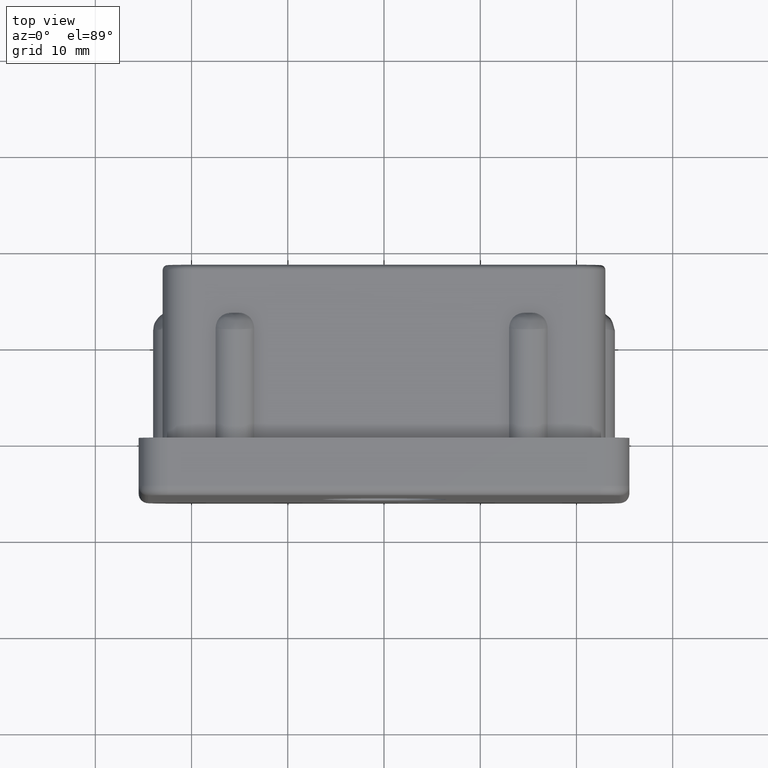
[diagram: clean part render]
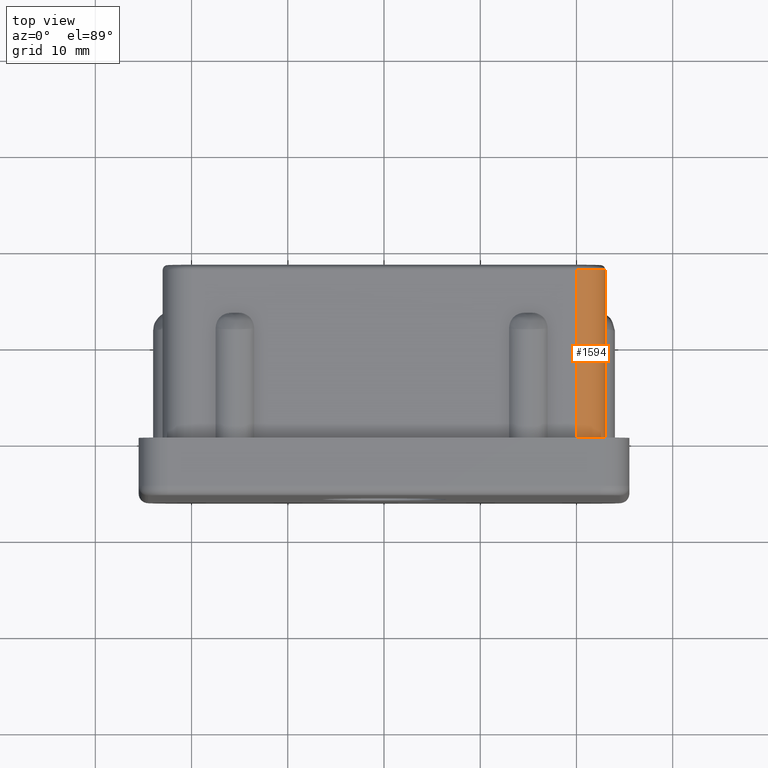
[diagram: same view with one face highlighted and labeled with its STEP entity id]
A machine part, top view. The second image highlights one B-rep face of the part: STEP entity #1594.
In plain terms, the highlighted cylindrical surface (edge-blend (fillet) strip) has radius 3 mm, axis along (0, 1, 0).
Its self-contained STEP definition (entity closure, byte-faithful):
#81=CIRCLE('',#1658,3.);
#123=CIRCLE('',#1724,3.);
#173=CYLINDRICAL_SURFACE('',#1728,3.);
#228=FACE_OUTER_BOUND('',#319,.T.);
#319=EDGE_LOOP('',(#1281,#1282,#1283,#1284));
#453=LINE('',#3820,#585);
#454=LINE('',#3822,#586);
#585=VECTOR('',#2047,17.5);
#586=VECTOR('',#2050,17.5);
#713=VERTEX_POINT('',#3630);
#714=VERTEX_POINT('',#3632);
#775=VERTEX_POINT('',#3804);
#777=VERTEX_POINT('',#3810);
#877=EDGE_CURVE('',#714,#713,#81,.F.);
#969=EDGE_CURVE('',#777,#775,#123,.T.);
#975=EDGE_CURVE('',#713,#775,#453,.T.);
#976=EDGE_CURVE('',#777,#714,#454,.T.);
#1281=ORIENTED_EDGE('',*,*,#969,.F.);
#1282=ORIENTED_EDGE('',*,*,#976,.T.);
#1283=ORIENTED_EDGE('',*,*,#877,.T.);
#1284=ORIENTED_EDGE('',*,*,#975,.T.);
#1594=ADVANCED_FACE('',(#228),#173,.T.);
#1658=AXIS2_PLACEMENT_3D('',#3633,#1853,#1854);
#1724=AXIS2_PLACEMENT_3D('',#3812,#2035,#2036);
#1728=AXIS2_PLACEMENT_3D('',#3821,#2048,#2049);
#1853=DIRECTION('center_axis',(0.,-1.,0.));
#1854=DIRECTION('ref_axis',(0.707106781186548,0.,0.707106781186548));
#2035=DIRECTION('center_axis',(0.,1.,0.));
#2036=DIRECTION('ref_axis',(0.707106781186548,0.,0.707106781186548));
#2047=DIRECTION('',(0.,1.,0.));
#2048=DIRECTION('center_axis',(0.,1.,0.));
#2049=DIRECTION('ref_axis',(0.707106781186548,0.,0.707106781186548));
#2050=DIRECTION('',(0.,-1.,0.));
#3630=CARTESIAN_POINT('',(23.,0.,20.));
#3632=CARTESIAN_POINT('',(20.,0.,23.));
#3633=CARTESIAN_POINT('Origin',(20.,0.,20.));
#3804=CARTESIAN_POINT('',(23.,17.5,20.));
#3810=CARTESIAN_POINT('',(20.,17.5,23.));
#3812=CARTESIAN_POINT('Origin',(20.,17.5,20.));
#3820=CARTESIAN_POINT('',(23.,0.,20.));
#3821=CARTESIAN_POINT('Origin',(20.,0.,20.));
#3822=CARTESIAN_POINT('',(20.,0.,23.));